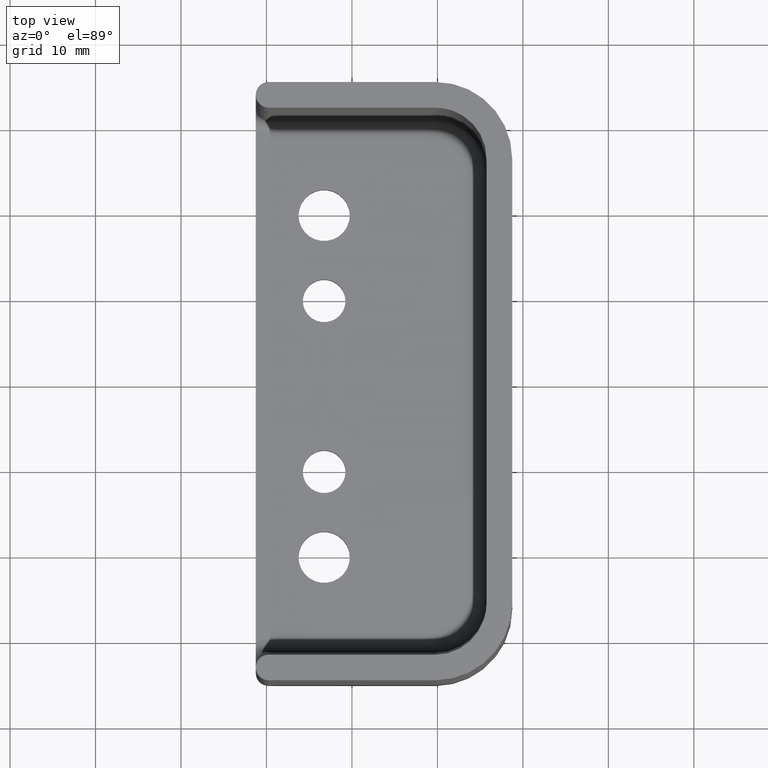
[diagram: clean part render]
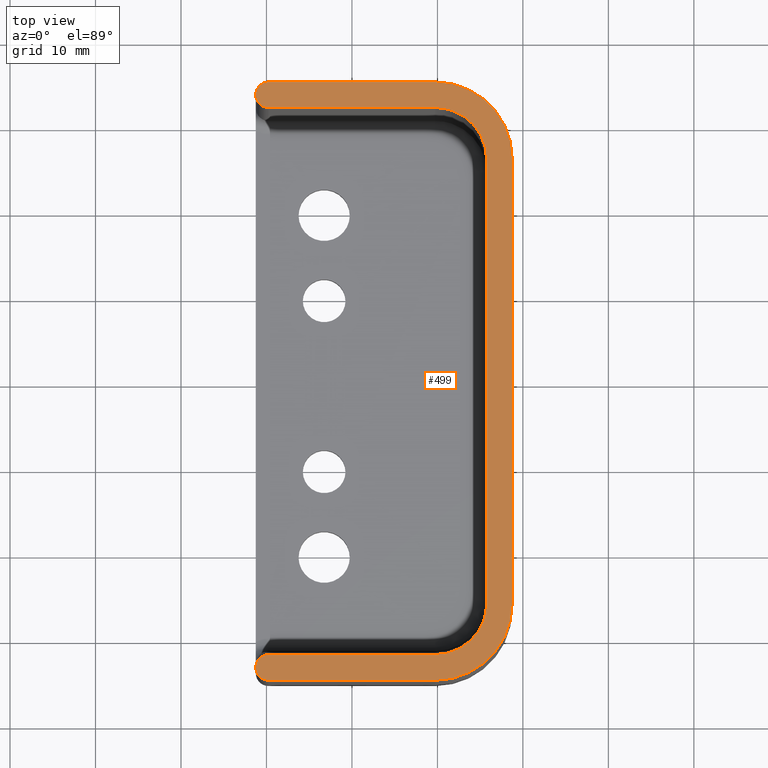
[diagram: same view with one face highlighted and labeled with its STEP entity id]
A machine part, top view. The second image highlights one B-rep face of the part: STEP entity #499.
In plain terms, the highlighted planar face has unit normal (0, 0, 1).
Its self-contained STEP definition (entity closure, byte-faithful):
#18=PLANE('',#552);
#40=LINE('',#945,#73);
#43=LINE('',#953,#76);
#44=LINE('',#958,#77);
#45=LINE('',#962,#78);
#46=LINE('',#966,#79);
#47=LINE('',#968,#80);
#73=VECTOR('',#660,19.5);
#76=VECTOR('',#669,19.5);
#77=VECTOR('',#674,19.4999999999996);
#78=VECTOR('',#677,52.0000000000002);
#79=VECTOR('',#680,19.4999999999996);
#80=VECTOR('',#683,51.9947159957318);
#97=ELLIPSE('',#533,6.0026420021342,6.);
#102=ELLIPSE('',#544,6.0026420021342,6.);
#103=ELLIPSE('',#547,1.50066050053355,1.5);
#104=ELLIPSE('',#550,1.50066050053355,1.5);
#139=FACE_OUTER_BOUND('',#176,.T.);
#176=EDGE_LOOP('',(#400,#401,#402,#403,#404,#405,#406,#407,#408,#409,#410,
#411,#412,#413));
#205=CIRCLE('',#553,1.5);
#206=CIRCLE('',#554,9.);
#207=CIRCLE('',#555,9.);
#208=CIRCLE('',#556,1.5);
#229=VERTEX_POINT('',#834);
#230=VERTEX_POINT('',#835);
#239=VERTEX_POINT('',#931);
#240=VERTEX_POINT('',#932);
#241=VERTEX_POINT('',#939);
#242=VERTEX_POINT('',#941);
#243=VERTEX_POINT('',#947);
#244=VERTEX_POINT('',#949);
#245=VERTEX_POINT('',#955);
#246=VERTEX_POINT('',#957);
#247=VERTEX_POINT('',#959);
#248=VERTEX_POINT('',#961);
#249=VERTEX_POINT('',#963);
#250=VERTEX_POINT('',#965);
#277=EDGE_CURVE('',#229,#230,#97,.T.);
#292=EDGE_CURVE('',#239,#240,#102,.T.);
#297=EDGE_CURVE('',#241,#242,#103,.T.);
#299=EDGE_CURVE('',#241,#240,#40,.T.);
#301=EDGE_CURVE('',#243,#244,#104,.T.);
#303=EDGE_CURVE('',#229,#244,#43,.T.);
#304=EDGE_CURVE('',#243,#245,#205,.T.);
#305=EDGE_CURVE('',#245,#246,#44,.T.);
#306=EDGE_CURVE('',#246,#247,#206,.T.);
#307=EDGE_CURVE('',#247,#248,#45,.T.);
#308=EDGE_CURVE('',#248,#249,#207,.T.);
#309=EDGE_CURVE('',#249,#250,#46,.T.);
#310=EDGE_CURVE('',#250,#242,#208,.T.);
#311=EDGE_CURVE('',#239,#230,#47,.T.);
#400=ORIENTED_EDGE('',*,*,#301,.F.);
#401=ORIENTED_EDGE('',*,*,#304,.T.);
#402=ORIENTED_EDGE('',*,*,#305,.T.);
#403=ORIENTED_EDGE('',*,*,#306,.T.);
#404=ORIENTED_EDGE('',*,*,#307,.T.);
#405=ORIENTED_EDGE('',*,*,#308,.T.);
#406=ORIENTED_EDGE('',*,*,#309,.T.);
#407=ORIENTED_EDGE('',*,*,#310,.T.);
#408=ORIENTED_EDGE('',*,*,#297,.F.);
#409=ORIENTED_EDGE('',*,*,#299,.T.);
#410=ORIENTED_EDGE('',*,*,#292,.F.);
#411=ORIENTED_EDGE('',*,*,#311,.T.);
#412=ORIENTED_EDGE('',*,*,#277,.F.);
#413=ORIENTED_EDGE('',*,*,#303,.T.);
#499=ADVANCED_FACE('',(#139),#18,.T.);
#533=AXIS2_PLACEMENT_3D('',#836,#617,#618);
#544=AXIS2_PLACEMENT_3D('',#933,#645,#646);
#547=AXIS2_PLACEMENT_3D('',#942,#655,#656);
#550=AXIS2_PLACEMENT_3D('',#950,#664,#665);
#552=AXIS2_PLACEMENT_3D('',#954,#670,#671);
#553=AXIS2_PLACEMENT_3D('',#956,#672,#673);
#554=AXIS2_PLACEMENT_3D('',#960,#675,#676);
#555=AXIS2_PLACEMENT_3D('',#964,#678,#679);
#556=AXIS2_PLACEMENT_3D('',#967,#681,#682);
#617=DIRECTION('center_axis',(0.,0.,1.));
#618=DIRECTION('ref_axis',(-1.74505729870514E-13,-1.,0.));
#645=DIRECTION('center_axis',(0.,0.,1.));
#646=DIRECTION('ref_axis',(6.47345049864124E-16,1.,0.));
#655=DIRECTION('center_axis',(0.,0.,-1.));
#656=DIRECTION('ref_axis',(-1.84955728532607E-16,-1.,0.));
#660=DIRECTION('',(1.,0.,0.));
#664=DIRECTION('center_axis',(0.,0.,-1.));
#665=DIRECTION('ref_axis',(1.74968119191846E-13,1.,0.));
#669=DIRECTION('',(-1.,0.,0.));
#670=DIRECTION('center_axis',(0.,0.,1.));
#671=DIRECTION('ref_axis',(1.,0.,0.));
#672=DIRECTION('center_axis',(0.,0.,1.));
#673=DIRECTION('ref_axis',(0.,1.,0.));
#674=DIRECTION('',(1.,-2.2773805633337E-16,0.));
#675=DIRECTION('center_axis',(0.,0.,1.));
#676=DIRECTION('ref_axis',(-1.2335811384724E-15,-1.,0.));
#677=DIRECTION('',(0.,1.,0.));
#678=DIRECTION('center_axis',(0.,0.,1.));
#679=DIRECTION('ref_axis',(1.,0.,0.));
#680=DIRECTION('',(-1.,0.,0.));
#681=DIRECTION('center_axis',(0.,0.,1.));
#682=DIRECTION('ref_axis',(0.,1.,0.));
#683=DIRECTION('',(0.,-1.,0.));
#834=CARTESIAN_POINT('',(9.75000000000018,-32.0000000000001,19.5));
#835=CARTESIAN_POINT('',(15.7500000000002,-25.9973579978659,19.5));
#836=CARTESIAN_POINT('Origin',(9.75000000000019,-25.9973579978659,19.5));
#931=CARTESIAN_POINT('',(15.7500000000002,25.9973579978659,19.5));
#932=CARTESIAN_POINT('',(9.75000000000018,32.0000000000001,19.5));
#933=CARTESIAN_POINT('Origin',(9.75000000000018,25.9973579978659,19.5));
#939=CARTESIAN_POINT('',(-9.74999999999981,32.0000000000001,19.5));
#941=CARTESIAN_POINT('',(-11.2499999273537,33.5003299596502,19.4999902070272));
#942=CARTESIAN_POINT('Origin',(-9.74999999999981,33.5006605005336,19.5));
#945=CARTESIAN_POINT('',(-0.637677972542982,32.0000000000001,19.5));
#947=CARTESIAN_POINT('',(-11.2499999999998,-33.5003299596182,19.4999902070272));
#949=CARTESIAN_POINT('',(-9.74999999999981,-32.0000000000001,19.5));
#950=CARTESIAN_POINT('Origin',(-9.74999999999981,-33.5006605005337,19.5));
#953=CARTESIAN_POINT('',(-0.637677972542982,-32.0000000000001,19.5));
#954=CARTESIAN_POINT('Origin',(9.97464405491385,-5.49146346248707E-15,19.5));
#955=CARTESIAN_POINT('',(-9.74999999999982,-35.0000000000001,19.5));
#956=CARTESIAN_POINT('Origin',(-9.74999999999982,-33.5000000000001,19.5));
#957=CARTESIAN_POINT('',(9.7499999999998,-35.0000000000001,19.5));
#958=CARTESIAN_POINT('',(-9.74999999999982,-35.0000000000001,19.5));
#959=CARTESIAN_POINT('',(18.7499999999998,-26.0000000000001,19.5));
#960=CARTESIAN_POINT('Origin',(9.74999999999981,-26.0000000000001,19.5));
#961=CARTESIAN_POINT('',(18.7499999999998,26.0000000000001,19.5));
#962=CARTESIAN_POINT('',(18.7499999999998,-26.0000000000001,19.5));
#963=CARTESIAN_POINT('',(9.7499999999998,35.0000000000001,19.5));
#964=CARTESIAN_POINT('Origin',(9.7499999999998,26.0000000000001,19.5));
#965=CARTESIAN_POINT('',(-9.7499999999998,35.0000000000001,19.5));
#966=CARTESIAN_POINT('',(9.7499999999998,35.0000000000001,19.5));
#967=CARTESIAN_POINT('Origin',(-9.7499999999998,33.5000000000001,19.5));
#968=CARTESIAN_POINT('',(15.7500000000002,-1.72081855529078E-15,19.5));